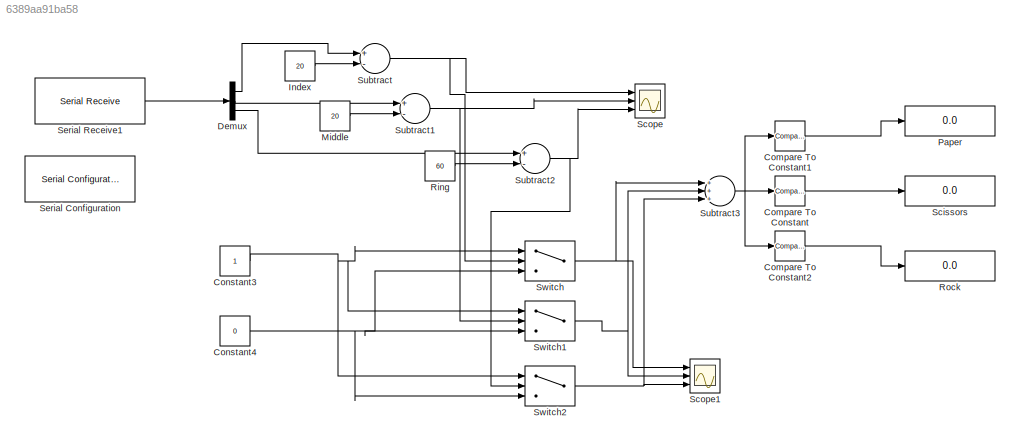
MODEL slx_6389aa91ba58
KIND model
BLOCK [Reference] Compare To Constant  REF=simulink/Logic and Bit
Operations/Compare
To Constant
  OutDataTypeStr = boolean
  Ports = [1, 1]
  SourceBlock = simulink/Logic and Bit\nOperations/Compare\nTo Constant
  SourceType = Compare To Constant
  ZeroCross = on
  const = 1
  relop = ==
BLOCK [Reference] Compare To Constant1  REF=simulink/Logic and Bit
Operations/Compare
To Constant
  OutDataTypeStr = boolean
  Ports = [1, 1]
  SourceBlock = simulink/Logic and Bit\nOperations/Compare\nTo Constant
  SourceType = Compare To Constant
  ZeroCross = on
  const = 0
  relop = ==
BLOCK [Reference] Compare To Constant2  REF=simulink/Logic and Bit
Operations/Compare
To Constant
  OutDataTypeStr = boolean
  Ports = [1, 1]
  SourceBlock = simulink/Logic and Bit\nOperations/Compare\nTo Constant
  SourceType = Compare To Constant
  ZeroCross = on
  const = 3
  relop = ==
BLOCK [Constant] Constant3
BLOCK [Constant] Constant4
  Value = 0
BLOCK [Demux] Demux
  DisplayOption = bar
  Outputs = 3
  Ports = [1, 3]
BLOCK [Constant] Index
  Value = 20
BLOCK [Constant] Middle
  Value = 20
BLOCK [Display] Paper
  Decimation = 1
  Ports = [1]
BLOCK [Constant] Ring
  Value = 60
BLOCK [Display] Rock
  Decimation = 1
  Ports = [1]
BLOCK [Display] Scissors
  Decimation = 1
  Ports = [1]
BLOCK [Scope] Scope
  DataFormat = StructureWithTime
  Floating = off
  NumInputPorts = 3
  Ports = [3]
  SampleTime = 0
  ShowLegends = off
  YMax = 200~200~200
  YMin = -25~20~-25
BLOCK [Scope] Scope1
  DataFormat = StructureWithTime
  Floating = off
  NumInputPorts = 3
  Ports = [3]
  SampleTime = 0
  SaveName = ScopeData1
  ShowLegends = off
  YMax = 1.5~1.5~1.5
  YMin = -0.5~-0.5~-1
BLOCK [Reference] Serial Configuration  REF=instrumentlib/Serial Configuration
  BaudRate = 9600
  ByteOrder = LittleEndian
  ComPort = COM15
  ComPortMenu = COM15
  DataBits = 8
  FlowControl = none
  ObjConstructor = serial('COM15');
  Parity = none
  Ports = []
  Priority = -200000
  SourceBlock = instrumentlib/Serial Configuration
  SourceType = Serial Configuration
  StopBits = 1
  Timeout = 10
BLOCK [Reference] Serial Receive1  REF=instrumentlib/Serial Receive
  ActionDataUnavailable = Output last received value
  ComPort = COM15
  ComPortMenu = COM15
  CustomValue = 0
  DataSize = [3  1]
  DataType = uint8
  EnableBlockingMode = on
  ObjConstructor = serial('COM15');
  Ports = [0, 1]
  SampleTime = 0.01
  SourceBlock = instrumentlib/Serial Receive
  SourceType = Serial Receive
  Terminator = <none>
BLOCK [Sum] Subtract
  InputSameDT = off
  Inputs = +-
  OutDataTypeStr = Inherit: Inherit via internal rule
  Ports = [2, 1]
  SaturateOnIntegerOverflow = off
BLOCK [Sum] Subtract1
  InputSameDT = off
  Inputs = +-
  OutDataTypeStr = Inherit: Inherit via internal rule
  Ports = [2, 1]
  SaturateOnIntegerOverflow = off
BLOCK [Sum] Subtract2
  InputSameDT = off
  Inputs = +-
  OutDataTypeStr = Inherit: Inherit via internal rule
  Ports = [2, 1]
  SaturateOnIntegerOverflow = off
BLOCK [Sum] Subtract3
  InputSameDT = off
  Inputs = +++
  OutDataTypeStr = Inherit: Inherit via internal rule
  Ports = [3, 1]
  SaturateOnIntegerOverflow = off
BLOCK [Switch] Switch
  Criteria = u2 > Threshold
  InputSameDT = off
  SaturateOnIntegerOverflow = off
  Threshold = 100
BLOCK [Switch] Switch1
  Criteria = u2 > Threshold
  InputSameDT = off
  SaturateOnIntegerOverflow = off
  Threshold = 100
BLOCK [Switch] Switch2
  Criteria = u2 > Threshold
  InputSameDT = off
  SaturateOnIntegerOverflow = off
  Threshold = 100
LINE Compare To Constant1:1 -> Paper:1
LINE Compare To Constant2:1 -> Rock:1
LINE Compare To Constant:1 -> Scissors:1
NET Constant3:1 -> Switch1:1, Switch2:1, Switch:1
NET Constant4:1 -> Switch1:3, Switch2:3, Switch:3
LINE Demux:1 -> Subtract:1
LINE Demux:2 -> Subtract1:1
LINE Demux:3 -> Subtract2:1
LINE Index:1 -> Subtract:2
LINE Middle:1 -> Subtract1:2
LINE Ring:1 -> Subtract2:2
LINE Serial Receive1:1 -> Demux:1
NET Subtract1:1 -> Scope:2, Switch1:2
NET Subtract2:1 -> Scope:3, Switch2:2
NET Subtract3:1 -> Compare To Constant1:1, Compare To Constant2:1, Compare To Constant:1
NET Subtract:1 -> Scope:1, Switch:2
NET Switch1:1 -> Scope1:2, Subtract3:2
NET Switch2:1 -> Scope1:3, Subtract3:3
NET Switch:1 -> Scope1:1, Subtract3:1
note: NET lines group one-source signal fan-out (src -> all destinations, sorted); 1:1 wires keep LINE
